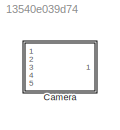
MODEL slx_13540e039d74
KIND model
CONFIG AbsTol = auto
CONFIG EnableMultiTasking = off
CONFIG FixedStep = auto
CONFIG MaxStep = auto
CONFIG MinStep = auto
CONFIG RelTol = 1e-3
CONFIG SampleTimeConstraint = Unconstrained
CONFIG SolverName = VariableStepAuto
CONFIG StartTime = 0.0
CONFIG StopTime = 10.0
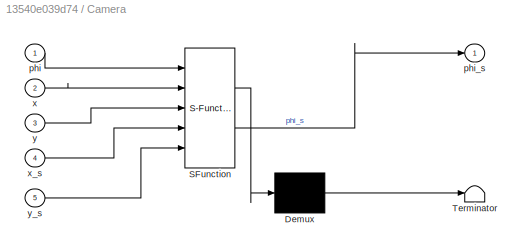
BLOCK [SubSystem] Camera
  ErrorFcn = Stateflow.Translate.translate
  PermitHierarchicalResolution = ExplicitOnly
  Ports = [5, 1]
  RequestExecContextInheritance = off
  SFBlockType = MATLAB Function
  SystemSampleTime = .2
  TreatAsAtomicUnit = on
BLOCK [Demux] Camera/ Demux 
  Outputs = 1
  Ports = [1, 1]
BLOCK [S-Function] Camera/ SFunction 
  EnableBusSupport = on
  FunctionName = sf_sfun
  PortCounts = [5 2]
  Ports = [5, 2]
  SFcnIsStateOwnerBlock = off
  SFunctionDeploymentMode = off
  Tag = Stateflow S-Function 2
BLOCK [Terminator] Camera/ Terminator 
BLOCK [Inport] Camera/phi
BLOCK [Outport] Camera/phi_s
BLOCK [Inport] Camera/x
  Port = 2
BLOCK [Inport] Camera/x_s
  Port = 4
BLOCK [Inport] Camera/y
  Port = 3
BLOCK [Inport] Camera/y_s
  Port = 5
CHART Camera states=1 transitions=1
  STATE_LABEL 'eML_blk_kernel()'
  STATE_LABEL 'SCRIPT:\nfunction phi_s = fcn(phi,x,y,x_s,y_s)\n%#codegen\n%\n% Simulation of Camera with line detection\n% phi - angle of robot in degrees\n% x - x position of robot in feet\n% y - y position of robot in feet\n% x_s - vector of x coordinates for line to be detected (in feet)\n% y_s - vector of y coordinates for line to be detected (in feet)\n%\n%\n\n% change show_image to 1 to see camera image during simulati...<+2767ch>'
CHART  states=0 transitions=0
